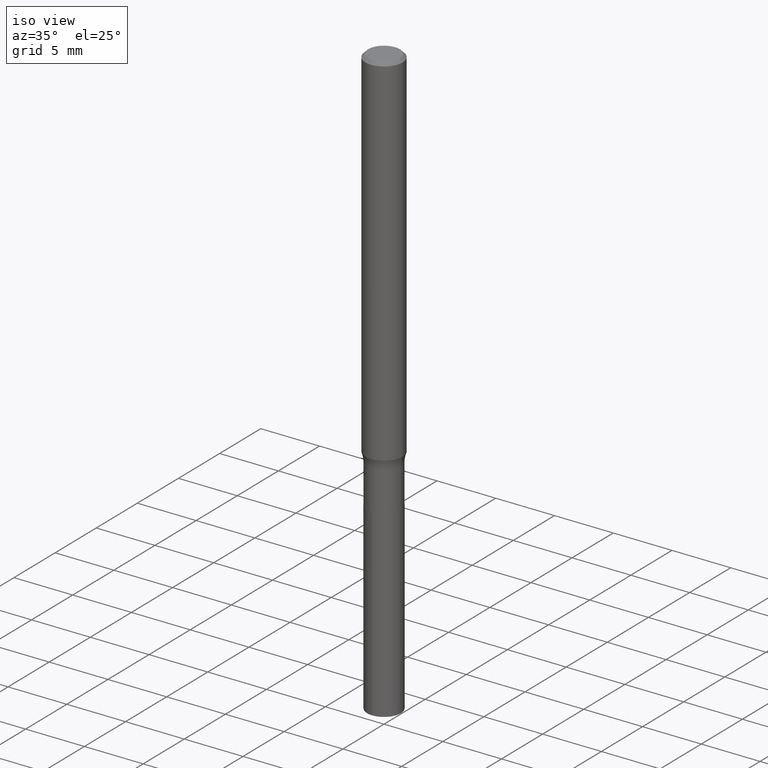
[diagram: clean part render]
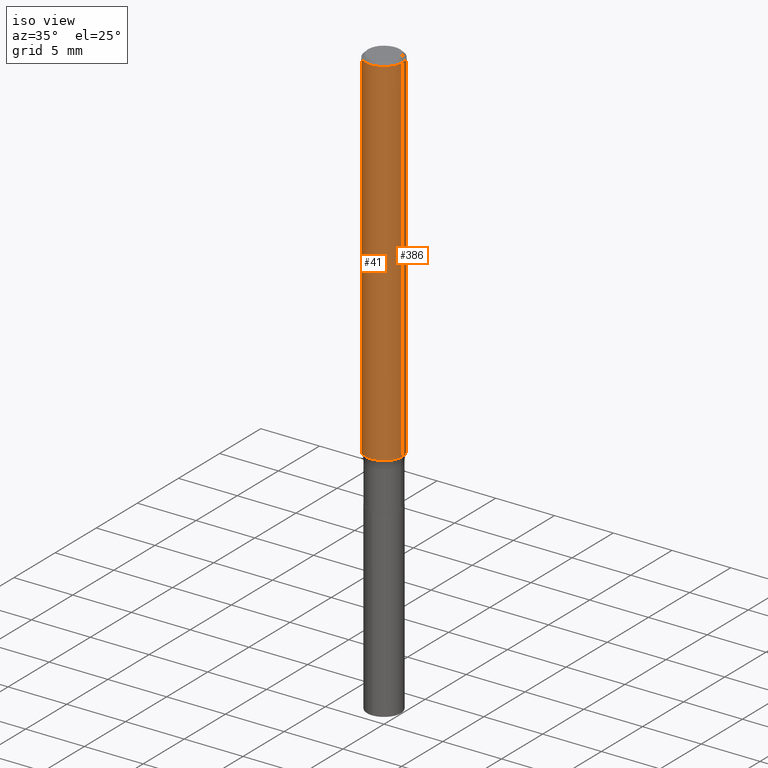
[diagram: same view with one multi-face feature highlighted, each face labeled with its STEP entity id]
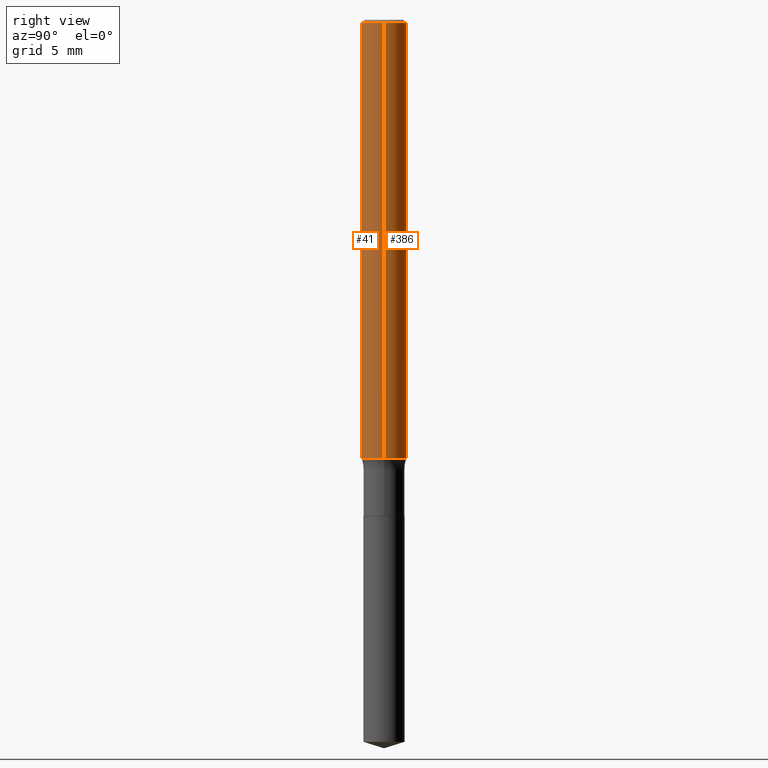
[diagram: same view with one multi-face feature highlighted, each face labeled with its STEP entity id]
A machine part, iso view. The highlighted faces form ONE feature: a constant-radius fillet chain: 2 tangent blend faces with common blend radius 1.5875 mm. The faces share edges in the B-rep.
A second angle (right view) of the same feature is appended — it is thin or edge-on in the first view.
Their STEP definitions:
[1] entity #386 (Cylinder):
#4 = ORIENTED_EDGE ( 'NONE', *, *, #61, .F. ) ;
#26 = DIRECTION ( 'NONE',  ( -2.445468806185136597E-29, 3.491481338843145583E-15, 1.000000000000000000 ) ) ;
#37 = CARTESIAN_POINT ( 'NONE',  ( 0.06250000000000015266, -4.636687217983694917E-15, -1.202999999999999625 ) ) ;
#54 = CARTESIAN_POINT ( 'NONE',  ( -0.06250000000000015266, -3.756162840778239053E-15, -1.202999999999999625 ) ) ;
#61 = EDGE_CURVE ( 'NONE', #205, #409, #68, .T. ) ;
#68 = LINE ( 'NONE', #445, #103 ) ;
#79 = CARTESIAN_POINT ( 'NONE',  ( -0.06250000000000006939, 4.440892098500631092E-16, -3.074334431409319267E-30 ) ) ;
#91 = DIRECTION ( 'NONE',  ( -2.445468806185136597E-29, 3.491481338843145583E-15, 1.000000000000000000 ) ) ;
#103 = VECTOR ( 'NONE', #222, 39.37007874015748143 ) ;
#105 = DIRECTION ( 'NONE',  ( 1.000000000000000000, -6.982962677686262766E-15, 0.000000000000000000 ) ) ;
#126 = ORIENTED_EDGE ( 'NONE', *, *, #392, .T. ) ;
#141 = VECTOR ( 'NONE', #425, 39.37007874015748143 ) ;
#205 = VERTEX_POINT ( 'NONE', #37 ) ;
#210 = CARTESIAN_POINT ( 'NONE',  ( 2.292627005798581061E-31, -3.273263755165471417E-17, -0.009375000000000063838 ) ) ;
#222 = DIRECTION ( 'NONE',  ( -2.445468806185136877E-29, 3.491481338843145188E-15, 1.000000000000000000 ) ) ;
#237 = EDGE_LOOP ( 'NONE', ( #126, #391, #382, #4 ) ) ;
#250 = FACE_OUTER_BOUND ( 'NONE', #237, .T. ) ;
#262 = AXIS2_PLACEMENT_3D ( 'NONE', #285, #26, #105 ) ;
#267 = AXIS2_PLACEMENT_3D ( 'NONE', #210, #91, #472 ) ;
#285 = CARTESIAN_POINT ( 'NONE',  ( 2.941898973840718147E-29, -4.200252050628302458E-15, -1.202999999999999625 ) ) ;
#287 = EDGE_CURVE ( 'NONE', #409, #356, #332, .T. ) ;
#332 = CIRCLE ( 'NONE', #267, 0.06250000000000000000 ) ;
#334 = DIRECTION ( 'NONE',  ( -2.445468806185136597E-29, 3.491481338843145583E-15, 1.000000000000000000 ) ) ;
#356 = VERTEX_POINT ( 'NONE', #462 ) ;
#364 = CIRCLE ( 'NONE', #262, 0.06250000000000013878 ) ;
#380 = LINE ( 'NONE', #79, #141 ) ;
#382 = ORIENTED_EDGE ( 'NONE', *, *, #287, .F. ) ;
#386 = ADVANCED_FACE ( 'NONE', ( #250 ), #441, .T. ) ;
#391 = ORIENTED_EDGE ( 'NONE', *, *, #447, .T. ) ;
#392 = EDGE_CURVE ( 'NONE', #205, #421, #364, .T. ) ;
#395 = DIRECTION ( 'NONE',  ( 1.000000000000000000, -6.982962677686266711E-15, 4.876176775795935793E-29 ) ) ;
#409 = VERTEX_POINT ( 'NONE', #486 ) ;
#421 = VERTEX_POINT ( 'NONE', #54 ) ;
#425 = DIRECTION ( 'NONE',  ( -2.445468806185136877E-29, 3.491481338843145188E-15, 1.000000000000000000 ) ) ;
#441 = CYLINDRICAL_SURFACE ( 'NONE', #482, 0.06250000000000006939 ) ;
#444 = CARTESIAN_POINT ( 'NONE',  ( 0.000000000000000000, 0.000000000000000000, 0.000000000000000000 ) ) ;
#445 = CARTESIAN_POINT ( 'NONE',  ( 0.06250000000000006939, -4.364351673553921624E-16, 3.047610484872463374E-30 ) ) ;
#447 = EDGE_CURVE ( 'NONE', #421, #356, #380, .T. ) ;
#462 = CARTESIAN_POINT ( 'NONE',  ( -0.06250000000000000000, -1.672403134239914519E-15, -0.009375000000000063838 ) ) ;
#472 = DIRECTION ( 'NONE',  ( 1.000000000000000000, -6.982962677686266711E-15, 0.000000000000000000 ) ) ;
#482 = AXIS2_PLACEMENT_3D ( 'NONE', #444, #334, #395 ) ;
#486 = CARTESIAN_POINT ( 'NONE',  ( 0.06250000000000000000, -4.691678049070463404E-16, -0.009375000000000063838 ) ) ;
[2] entity #41 (Cylinder):
#10 = EDGE_LOOP ( 'NONE', ( #118, #208, #71, #383 ) ) ;
#37 = CARTESIAN_POINT ( 'NONE',  ( 0.06250000000000015266, -4.636687217983694917E-15, -1.202999999999999625 ) ) ;
#41 = ADVANCED_FACE ( 'NONE', ( #183 ), #219, .T. ) ;
#54 = CARTESIAN_POINT ( 'NONE',  ( -0.06250000000000015266, -3.756162840778239053E-15, -1.202999999999999625 ) ) ;
#55 = DIRECTION ( 'NONE',  ( -2.445468806185136597E-29, 3.491481338843145583E-15, 1.000000000000000000 ) ) ;
#59 = AXIS2_PLACEMENT_3D ( 'NONE', #476, #257, #396 ) ;
#61 = EDGE_CURVE ( 'NONE', #205, #409, #68, .T. ) ;
#68 = LINE ( 'NONE', #445, #103 ) ;
#71 = ORIENTED_EDGE ( 'NONE', *, *, #61, .T. ) ;
#72 = EDGE_CURVE ( 'NONE', #421, #205, #232, .T. ) ;
#78 = EDGE_CURVE ( 'NONE', #356, #409, #199, .T. ) ;
#79 = CARTESIAN_POINT ( 'NONE',  ( -0.06250000000000006939, 4.440892098500631092E-16, -3.074334431409319267E-30 ) ) ;
#96 = CARTESIAN_POINT ( 'NONE',  ( 0.000000000000000000, 0.000000000000000000, 0.000000000000000000 ) ) ;
#103 = VECTOR ( 'NONE', #222, 39.37007874015748143 ) ;
#118 = ORIENTED_EDGE ( 'NONE', *, *, #447, .F. ) ;
#141 = VECTOR ( 'NONE', #425, 39.37007874015748143 ) ;
#173 = DIRECTION ( 'NONE',  ( -2.445468806185136597E-29, 3.491481338843145583E-15, 1.000000000000000000 ) ) ;
#183 = FACE_OUTER_BOUND ( 'NONE', #10, .T. ) ;
#187 = CARTESIAN_POINT ( 'NONE',  ( 2.292627005798581061E-31, -3.273263755165471417E-17, -0.009375000000000063838 ) ) ;
#199 = CIRCLE ( 'NONE', #346, 0.06250000000000000000 ) ;
#205 = VERTEX_POINT ( 'NONE', #37 ) ;
#208 = ORIENTED_EDGE ( 'NONE', *, *, #72, .T. ) ;
#219 = CYLINDRICAL_SURFACE ( 'NONE', #448, 0.06250000000000006939 ) ;
#222 = DIRECTION ( 'NONE',  ( -2.445468806185136877E-29, 3.491481338843145188E-15, 1.000000000000000000 ) ) ;
#232 = CIRCLE ( 'NONE', #59, 0.06250000000000013878 ) ;
#251 = DIRECTION ( 'NONE',  ( 1.000000000000000000, -6.982962677686266711E-15, 4.876176775795935793E-29 ) ) ;
#257 = DIRECTION ( 'NONE',  ( -2.445468806185136597E-29, 3.491481338843145583E-15, 1.000000000000000000 ) ) ;
#346 = AXIS2_PLACEMENT_3D ( 'NONE', #187, #55, #367 ) ;
#356 = VERTEX_POINT ( 'NONE', #462 ) ;
#367 = DIRECTION ( 'NONE',  ( 1.000000000000000000, -6.982962677686266711E-15, 0.000000000000000000 ) ) ;
#380 = LINE ( 'NONE', #79, #141 ) ;
#383 = ORIENTED_EDGE ( 'NONE', *, *, #78, .F. ) ;
#396 = DIRECTION ( 'NONE',  ( 1.000000000000000000, -6.982962677686262766E-15, 0.000000000000000000 ) ) ;
#409 = VERTEX_POINT ( 'NONE', #486 ) ;
#421 = VERTEX_POINT ( 'NONE', #54 ) ;
#425 = DIRECTION ( 'NONE',  ( -2.445468806185136877E-29, 3.491481338843145188E-15, 1.000000000000000000 ) ) ;
#445 = CARTESIAN_POINT ( 'NONE',  ( 0.06250000000000006939, -4.364351673553921624E-16, 3.047610484872463374E-30 ) ) ;
#447 = EDGE_CURVE ( 'NONE', #421, #356, #380, .T. ) ;
#448 = AXIS2_PLACEMENT_3D ( 'NONE', #96, #173, #251 ) ;
#462 = CARTESIAN_POINT ( 'NONE',  ( -0.06250000000000000000, -1.672403134239914519E-15, -0.009375000000000063838 ) ) ;
#476 = CARTESIAN_POINT ( 'NONE',  ( 2.941898973840718147E-29, -4.200252050628302458E-15, -1.202999999999999625 ) ) ;
#486 = CARTESIAN_POINT ( 'NONE',  ( 0.06250000000000000000, -4.691678049070463404E-16, -0.009375000000000063838 ) ) ;